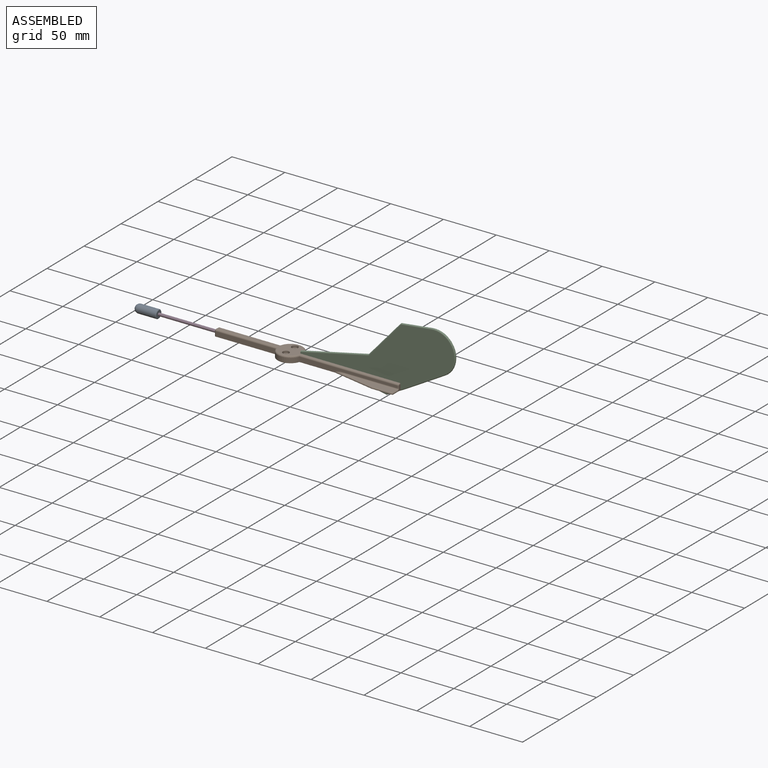
[diagram: assembled view]
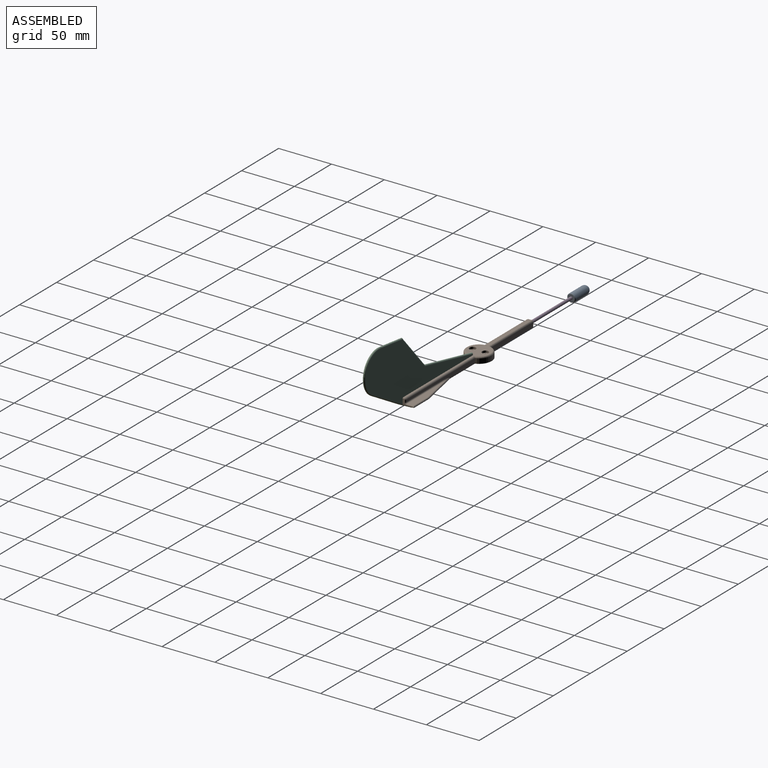
[diagram: assembled view, second angle]
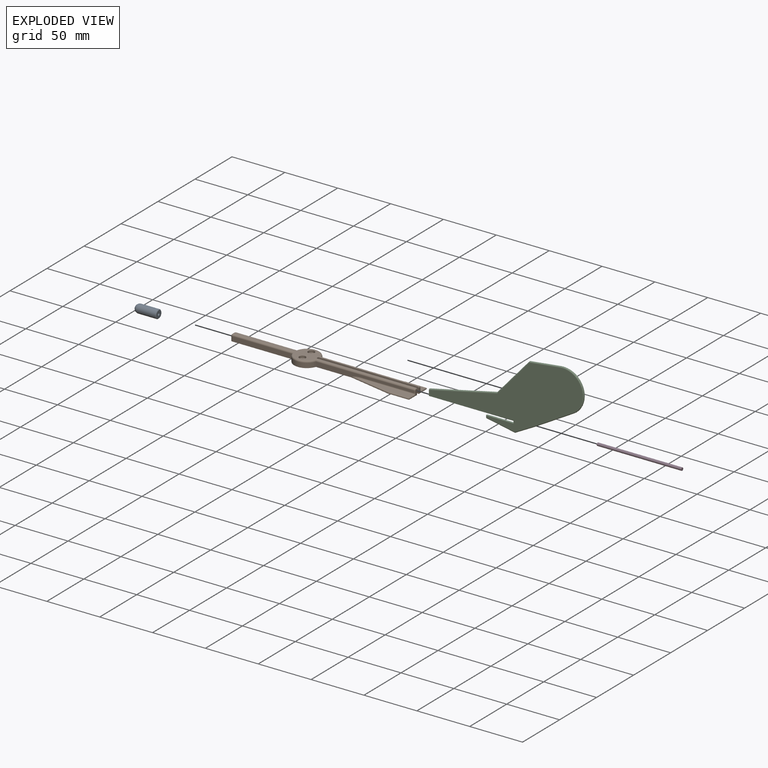
[diagram: exploded view]
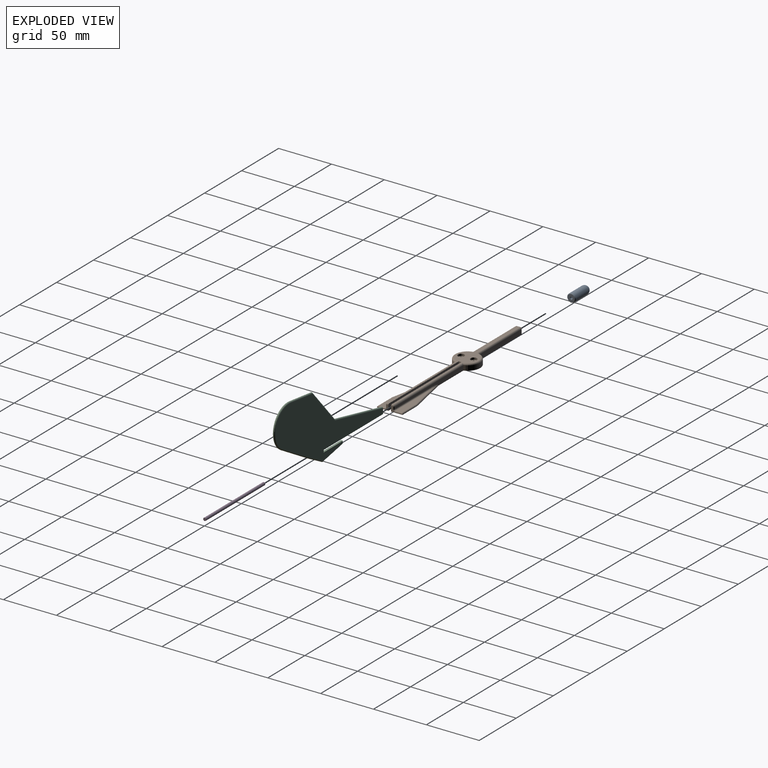
[diagram: exploded view, second angle]
ASSEMBLY  parts=4 mates=2
PART A: 6 faces, bbox 8x8x22 mm
  f0: plane 2.5x2.5mm, normal (0,0,1), area 4.9mm2, adj f1
  f1: cylinder r=1.25mm len=18mm, axis (0,0,1), area 141.4mm2, adj f0,f2
  f2: plane 7x7mm, normal (0,0,1), area 33.6mm2, adj f1,f5
  f3: cylinder r=4mm len=17.5mm, axis (0,0,1), area 439.8mm2, adj f4,f5
  f4: sphere r=4mm, area 100.5mm2, adj f3
  f5: cone r=3.5mm half-angle=45deg, axis (0,0,-1), area 16.7mm2, adj f2,f3
PART B: 61 faces, bbox 175x26x6 mm
  f0: plane 10.75x5mm, normal (1,0,0), area 13.2mm2, adj f1,f13,f16,f28,f51,f54,f56,f58
  f1: cylinder r=1mm len=1.25mm, axis (0,-1,0), area 2mm2, adj f0,f3,f16,f58
  f2: plane 92.69x4.5mm, normal (0,-1,0), area 279.6mm2, adj f5,f13,f30,f44,f48,f52,f56
  f3: plane 172.5x21mm, normal (0,0,1), area 696.9mm2, adj f1,f10,f12,f14,f15,f16,f30,f31
  f4: plane 56.88x4.5mm, normal (0,-1,0), area 256mm2, adj f5,f13,f33,f34
  f5: cylinder r=12mm len=22.93mm, axis (0,0,-1), area 137.7mm2, adj f2,f4,f13,f31
  f6: plane 10.75x5mm, normal (1,0,0), area 13.2mm2, adj f13,f14,f24,f50,f53,f55,f57,f59
  f7: plane 92.69x4.5mm, normal (0,1,0), area 279.6mm2, adj f8,f13,f32,f41,f45,f49,f55
  f8: cylinder r=12mm len=22.93mm, axis (0,0,-1), area 137.7mm2, adj f7,f9,f13,f35
  f9: plane 56.88x4.5mm, normal (0,1,0), area 256mm2, adj f8,f13,f37,f40
  f10: cylinder r=3mm len=6mm, axis (0,0,-1), area 37.7mm2, adj f3,f21
  f11: plane 4.5x3mm, normal (-1,0,0), area 8.6mm2, adj f13,f19,f34,f38,f40
  f12: cylinder r=3mm len=6mm, axis (0,0,-1), area 37.7mm2, adj f3,f23
  f13: plane 175x24mm, normal (0,0,-1), area 2129.2mm2, adj f0,f2,f4,f5,f6,f7,f8,f9
  f14: plane 95x6mm, normal (0,-1,0), area 409.8mm2, adj f3,f6,f13,f15,f17,f59,f60
  f15: plane 4x2.5mm, normal (1,0,0), area 10mm2, adj f3,f14,f16,f17
  f16: plane 95x6mm, normal (0,1,0), area 409.8mm2, adj f0,f1,f3,f13,f15,f17,f60
  f17: plane 80x2.5mm, normal (0,0,1), area 200mm2, adj f14,f15,f16,f60
  f18: cone r=0mm half-angle=59deg, axis (-1,0,0), area 5.7mm2, adj f19
  f19: cylinder r=1.25mm len=20mm, axis (-1,0,0), area 157.1mm2, adj f11,f18
  f20: cylinder r=1.75mm len=4mm, axis (0,0,-1), area 44mm2, adj f13,f21
  f21: plane 6x6mm, normal (0,0,1), area 18.7mm2, adj f10,f20
  f22: cylinder r=1.75mm len=4mm, axis (0,0,-1), area 44mm2, adj f13,f23
  f23: plane 6x6mm, normal (0,0,1), area 18.7mm2, adj f12,f22
  f24: plane 20x0.4mm, normal (0,1,0), area 8mm2, adj f6,f13,f25,f46
  f25: plane 39.9x7.98mm, normal (-0.2,0.98,0), area 16.3mm2, adj f13,f24,f41,f42
  f26: plane 48.9x6mm, normal (0,0,1), area 203.4mm2, adj f42,f46,f49,f50
  f27: plane 39.9x7.98mm, normal (-0.2,-0.98,0), area 16.3mm2, adj f13,f28,f43,f44
  f28: plane 20x0.4mm, normal (0,-1,0), area 8mm2, adj f0,f13,f27,f47
  f29: plane 48.9x6mm, normal (0,0,1), area 203.4mm2, adj f43,f47,f51,f52
  f30: cylinder r=1.5mm len=93.8mm, axis (-1,0,0), area 219.3mm2, adj f2,f3,f31,f58
  f31: torus R=10.5mm, axis (0,0,1), area 70.7mm2, adj f3,f5,f30,f33
  f32: cylinder r=1.5mm len=93.8mm, axis (1,0,0), area 219.3mm2, adj f3,f7,f35,f57
  f33: cylinder r=1.5mm len=58.11mm, axis (-1,0,0), area 135.1mm2, adj f3,f4,f31,f36
  f34: cylinder r=1.5mm len=4.5mm, axis (0,0,1), area 10.6mm2, adj f4,f11,f13,f36
  f35: torus R=10.5mm, axis (0,0,1), area 70.7mm2, adj f3,f8,f32,f37
  f36: sphere r=1.5mm, area 3.5mm2, adj f33,f34,f38
  f37: cylinder r=1.5mm len=58.11mm, axis (1,0,0), area 135.1mm2, adj f3,f9,f35,f39
  f38: cylinder r=1.5mm len=3mm, axis (0,1,0), area 7.1mm2, adj f3,f11,f36,f39
  f39: sphere r=1.5mm, area 3.5mm2, adj f37,f38,f40
  f40: cylinder r=1.5mm len=4.5mm, axis (0,0,-1), area 10.6mm2, adj f9,f11,f13,f39
  f41: cylinder r=1mm len=0.4mm, axis (0,0,-1), area 0.1mm2, adj f7,f13,f25,f45
  f42: cylinder r=1mm len=40.1mm, axis (0.98,0.2,0), area 58.1mm2, adj f25,f26,f45,f46
  f43: cylinder r=1mm len=40.1mm, axis (-0.98,0.2,0), area 58.1mm2, adj f27,f29,f47,f48
  f44: cylinder r=1mm len=0.4mm, axis (0,0,-1), area 0.1mm2, adj f2,f13,f27,f48
  f45: bspline ~10.2x2mm, area 10.4mm2, adj f7,f41,f42,f49
  f46: cylinder r=1mm len=20mm, axis (1,0,0), area 30.8mm2, adj f24,f26,f42,f50
  f47: cylinder r=1mm len=20mm, axis (-1,0,0), area 30.8mm2, adj f28,f29,f43,f51
  f48: bspline ~10.2x2mm, area 10.4mm2, adj f2,f43,f44,f52
  f49: cylinder r=1mm len=48.9mm, axis (-1,0,0), area 76.8mm2, adj f7,f26,f45,f53
  f50: cylinder r=1mm len=7mm, axis (0,1,0), area 10.4mm2, adj f6,f26,f46,f53
  f51: cylinder r=1mm len=7mm, axis (0,-1,0), area 10.4mm2, adj f0,f29,f47,f54
  f52: cylinder r=1mm len=48.9mm, axis (1,0,0), area 76.8mm2, adj f2,f29,f48,f54
  f53: torus R=2mm, axis (1,0,0), area 3.4mm2, adj f6,f49,f50,f55
  f54: torus R=2mm, axis (1,0,0), area 3.4mm2, adj f0,f51,f52,f56
  f55: cylinder r=1mm len=2.1mm, axis (0,0,-1), area 3.3mm2, adj f6,f7,f53,f57
  f56: cylinder r=1mm len=2.1mm, axis (0,0,1), area 3.3mm2, adj f0,f2,f54,f58
  f57: torus R=0.5mm, axis (1,0,0), area 2.8mm2, adj f6,f32,f55,f59
  f58: torus R=0.5mm, axis (1,0,0), area 2.8mm2, adj f0,f1,f30,f56
  f59: cylinder r=1mm len=1.25mm, axis (0,-1,0), area 2mm2, adj f3,f6,f14,f57
  f60: plane 2.5x2mm, normal (1,0,0), area 5mm2, adj f13,f14,f16,f17
PART C: 15 faces, bbox 148.4x2x70.2 mm
  f0: plane 80x2mm, normal (0,0,-1), area 160mm2, adj f1,f3,f4,f5
  f1: plane 2.2x2mm, normal (-1,0,0), area 4.4mm2, adj f0,f2,f4,f5
  f2: plane 26.37x2mm, normal (0,0,1), area 52.3mm2, adj f1,f4,f5,f8
  f3: plane 6x2mm, normal (-1,0,0), area 11.6mm2, adj f0,f4,f5,f6
  f4: plane 145.52x66.49mm, normal (0,-1,0), area 4172mm2, adj f0,f1,f2,f3,f6,f7,f8,f9
  f5: plane 145.52x66.49mm, normal (0,1,0), area 4172mm2, adj f0,f1,f2,f3,f6,f7,f8,f9
  f6: cylinder r=1mm len=65.01mm, axis (0.98,0,0.22), area 207.4mm2, adj f3,f4,f5,f7
  f7: cylinder r=1mm len=35.47mm, axis (0.66,0,0.75), area 144.8mm2, adj f4,f5,f6,f9
  f8: cylinder r=1mm len=2mm, axis (0,0,1), area 5.8mm2, adj f2,f4,f5,f10
  f9: cylinder r=1mm len=29.45mm, axis (0.99,0,0.12), area 92.4mm2, adj f4,f5,f7,f11
  f10: sphere r=1mm, area 2.8mm2, adj f8,f12
  f11: torus R=19mm, axis (0,-1,0), area 168.9mm2, adj f4,f5,f9,f13
  f12: cylinder r=1mm len=26.92mm, axis (-0.98,0,0.19), area 85.1mm2, adj f4,f5,f10,f14
  f13: cylinder r=1mm len=37.02mm, axis (-0.87,0,-0.5), area 132.5mm2, adj f4,f5,f11,f14
  f14: cylinder r=1mm len=19.29mm, axis (-0.88,0,-0.47), area 66.7mm2, adj f4,f5,f12,f13
PART D: 3 faces, bbox 2.8x80x2.8 mm
  f0: cylinder r=1.38mm len=80mm, axis (0,1,0), area 691.2mm2, adj f1,f2
  f1: plane 2.75x2.75mm, normal (0,-1,0), area 5.9mm2, adj f0
  f2: plane 2.75x2.75mm, normal (0,1,0), area 5.9mm2, adj f0
PLACE A rot(axis=(-0.58,0.58,-0.58),120deg) t=(-142.13,-0.03,3.76)mm
PLACE B t=(0.37,-0.03,0.76)mm
PLACE C t=(60.37,1.22,2.76)mm
PLACE D rot(axis=(0.58,-0.58,0.58),120deg) t=(-129.63,-0.03,3.76)mm
MATE slider A.f1 <-> D.f0  axis (1,0,0) through (-124.13,-0.03,3.76)mm
MATE fastened C.f0 <-> B.f17  axis (0,0,-1) through (10.37,1.22,2.76)mm
